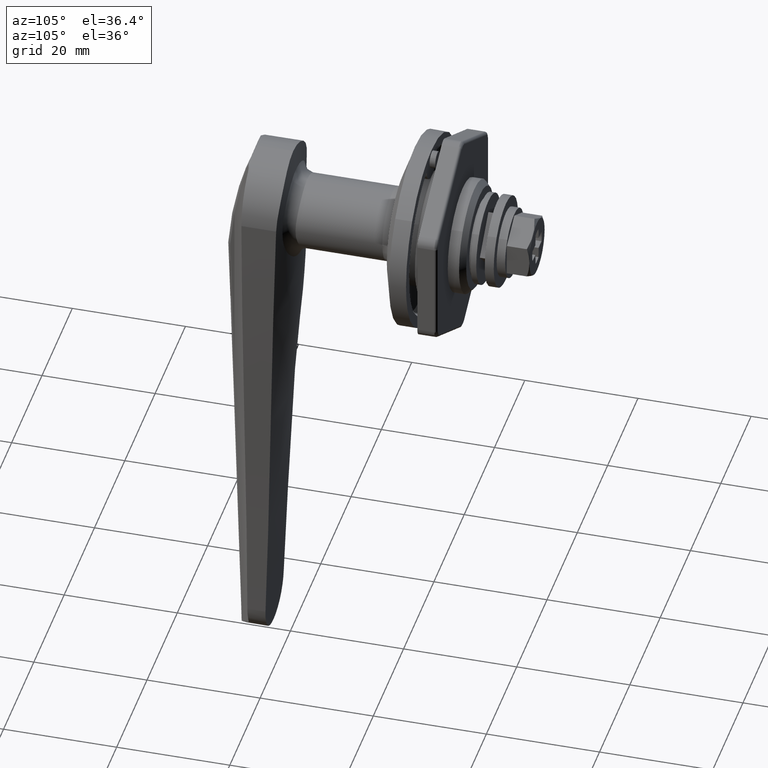
[diagram: clean part render]
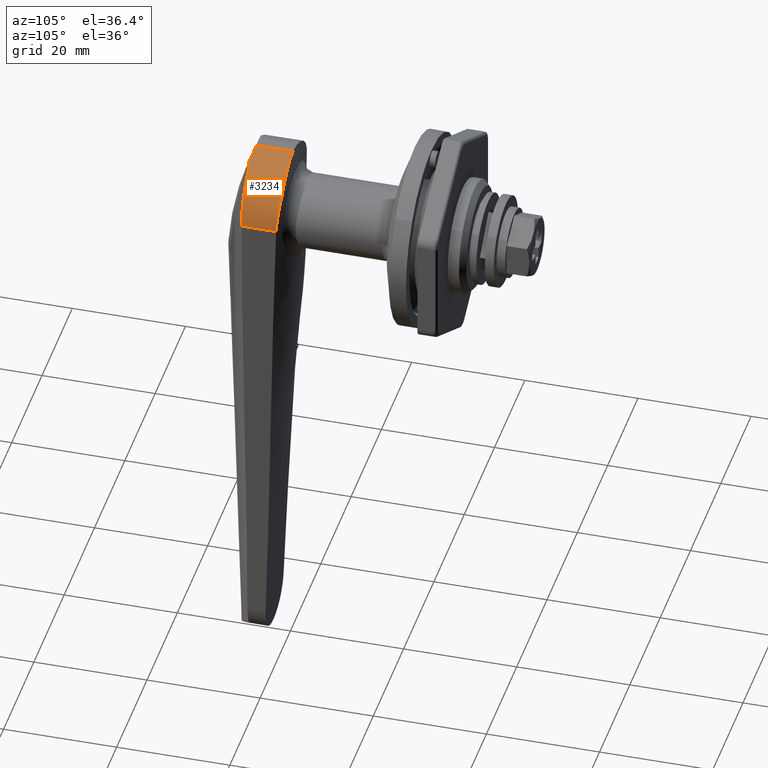
[diagram: same view with one face highlighted and labeled with its STEP entity id]
A machine part, auxiliary view. The second image highlights one B-rep face of the part: STEP entity #3234.
In plain terms, the highlighted face is a freeform B-spline surface patch.
Its self-contained STEP definition (entity closure, byte-faithful):
#2079=CARTESIAN_POINT('',(-26.000266772977749,-5.550000000000000,10.308192589194601));
#2080=VERTEX_POINT('',#2079);
#2094=CARTESIAN_POINT('',(-26.000323723438449,-5.543396750818820,10.312629633476201));
#2095=VERTEX_POINT('',#2094);
#2096=CARTESIAN_POINT('',(-26.000323723438449,-5.543396750818820,10.312629633476201));
#2097=CARTESIAN_POINT('',(-26.000266772977749,-5.550000000000000,10.308192589194601));
#2098=QUASI_UNIFORM_CURVE('',1,(#2096,#2097),.UNSPECIFIED.,.F.,.U.);
#2099=EDGE_CURVE('',#2095,#2080,#2098,.T.);
#2837=CARTESIAN_POINT('',(-26.320153862251999,-3.950608134048490,11.182432409005539));
#2838=VERTEX_POINT('',#2837);
#2839=CARTESIAN_POINT('',(-26.285692763622400,-4.207599162532504,11.066866807942841));
#2840=VERTEX_POINT('',#2839);
#2841=CARTESIAN_POINT('',(-26.320153862251999,-3.950608134048495,11.182432409005520));
#2842=CARTESIAN_POINT('',(-26.327417528585659,-3.994382438876161,11.163488936337140));
#2843=CARTESIAN_POINT('',(-26.327805782377940,-4.037902885098674,11.144281314591669));
#2844=CARTESIAN_POINT('',(-26.318964780111781,-4.102820718639954,11.115074225595979));
#2845=CARTESIAN_POINT('',(-26.314385565860839,-4.124468427241653,11.105239983137940));
#2846=CARTESIAN_POINT('',(-26.302261553241170,-4.166672712652375,11.085889700234359));
#2847=CARTESIAN_POINT('',(-26.294711444925060,-4.187345944916048,11.076321792167709));
#2848=CARTESIAN_POINT('',(-26.285692763622400,-4.207599162532504,11.066866807942841));
#2849=B_SPLINE_CURVE_WITH_KNOTS('',3,(#2841,#2842,#2843,#2844,#2845,#2846,#2847,#2848),.UNSPECIFIED.,.F.,.U.,(4,2,2,4),(0.0,0.500000000000000,0.750000000000000,1.0),.UNSPECIFIED.);
#2850=EDGE_CURVE('',#2838,#2840,#2849,.T.);
#2972=CARTESIAN_POINT('',(-26.000317116931750,-0.002850863706771,12.000000000000460));
#2973=VERTEX_POINT('',#2972);
#2974=CARTESIAN_POINT('',(-26.320153862251971,-3.950608134048498,11.182432409005539));
#2975=CARTESIAN_POINT('',(-26.294630685031059,-3.796793340180527,11.248996260906820));
#2976=CARTESIAN_POINT('',(-26.270388325368820,-3.640787764226694,11.311892871241019));
#2977=CARTESIAN_POINT('',(-26.236054947932580,-3.403403201605439,11.400607342929570));
#2978=CARTESIAN_POINT('',(-26.224948999232179,-3.323712010517924,11.429239907394511));
#2979=CARTESIAN_POINT('',(-26.203434226070840,-3.163184756785444,11.484599009413859));
#2980=CARTESIAN_POINT('',(-26.193029675685050,-3.082367886219294,11.511314377434530));
#2981=CARTESIAN_POINT('',(-26.143095658997922,-2.677887923691455,11.639297445482599));
#2982=CARTESIAN_POINT('',(-26.109554720259300,-2.351083826238686,11.724519710581220));
#2983=CARTESIAN_POINT('',(-26.055493379794701,-1.691141757246815,11.861368258602720));
#2984=CARTESIAN_POINT('',(-26.034972754714751,-1.358003604237731,11.912993343960631));
#2985=CARTESIAN_POINT('',(-26.007385422248088,-0.685309774623446,11.982306856177621));
#2986=CARTESIAN_POINT('',(-26.000317185756689,-0.345754939828721,11.999999827512250));
#2987=CARTESIAN_POINT('',(-26.000317116931750,-0.002850863706771,12.000000000000460));
#2988=B_SPLINE_CURVE_WITH_KNOTS('',3,(#2974,#2975,#2976,#2977,#2978,#2979,#2980,#2981,#2982,#2983,#2984,#2985,#2986,#2987),.UNSPECIFIED.,.F.,.U.,(4,2,2,2,2,2,4),(0.0,0.124999999999999,0.187499999999999,0.249999999999999,0.499999999999999,0.750000000000000,1.0),.UNSPECIFIED.);
#2989=EDGE_CURVE('',#2838,#2973,#2988,.T.);
#3128=CARTESIAN_POINT('',(-26.500387417035920,-9.933385186226666,1.626423289584659));
#3129=CARTESIAN_POINT('',(-19.170408241528271,-9.933385186231046,1.626423289588974));
#3130=CARTESIAN_POINT('',(-26.500387417029280,-10.419605235703571,12.762693307249647));
#3131=CARTESIAN_POINT('',(-19.170408241521617,-10.419605235694007,12.762693307253590));
#3132=CARTESIAN_POINT('',(-26.500387417027273,0.699419593406309,11.975161280981830));
#3133=CARTESIAN_POINT('',(-19.170408241519620,0.699419593417219,11.975161280978801));
#3141=(BOUNDED_SURFACE()B_SPLINE_SURFACE(1,2,((#3128,#3130,#3132),(#3129,#3131,#3133)),.UNSPECIFIED.,.F.,.F.,.U.)B_SPLINE_SURFACE_WITH_KNOTS((2,2),(3,3),(0.0,7.329979175507655),(0.0,17.817010879981360),.UNSPECIFIED.)GEOMETRIC_REPRESENTATION_ITEM()RATIONAL_B_SPLINE_SURFACE(((1.0,0.664380634701290,0.996497201948666),(1.0,0.664380634701290,0.996497201948666)))REPRESENTATION_ITEM('')SURFACE());
#3142=CARTESIAN_POINT('',(-26.000323723438420,-5.543396750818811,10.312629633476190));
#3143=CARTESIAN_POINT('',(-26.000762022892630,-5.324355296596636,10.459687041527340));
#3144=CARTESIAN_POINT('',(-26.022813812337709,-5.102649668820920,10.595891279652751));
#3145=CARTESIAN_POINT('',(-26.092459173149781,-4.767258043719296,10.784702646860280));
#3146=CARTESIAN_POINT('',(-26.121804259040271,-4.654992141624218,10.845052981638631));
#3147=CARTESIAN_POINT('',(-26.175963320314811,-4.486087824513294,10.931761197259791));
#3148=CARTESIAN_POINT('',(-26.195770503819400,-4.429568615263989,10.960089648808770));
#3149=CARTESIAN_POINT('',(-26.238403340174958,-4.317822989747087,11.014799968605461));
#3150=CARTESIAN_POINT('',(-26.261268130596040,-4.262449466172615,11.041260567716320));
#3151=CARTESIAN_POINT('',(-26.285692763622379,-4.207599162532493,11.066866807942841));
#3152=B_SPLINE_CURVE_WITH_KNOTS('',3,(#3142,#3143,#3144,#3145,#3146,#3147,#3148,#3149,#3150,#3151),.UNSPECIFIED.,.F.,.U.,(4,2,2,2,4),(0.0,0.500000000000001,0.750000000000001,0.875000000000001,1.0),.UNSPECIFIED.);
#3153=EDGE_CURVE('',#2095,#2840,#3152,.T.);
#3154=ORIENTED_EDGE('',*,*,#3153,.F.);
#3155=ORIENTED_EDGE('',*,*,#2099,.T.);
#3156=CARTESIAN_POINT('',(-26.000041112782998,-9.942125116040240,1.940300609303055));
#3157=VERTEX_POINT('',#3156);
#3158=CARTESIAN_POINT('',(-26.000041112782998,-9.942125116040240,1.940300609303055));
#3159=CARTESIAN_POINT('',(-26.000057245447302,-9.950252161234984,2.607078268082801));
#3160=CARTESIAN_POINT('',(-26.000088342128041,-9.838360034211364,3.865187677605284));
#3161=CARTESIAN_POINT('',(-26.000131664372191,-9.357464908399948,5.548755192554270));
#3162=CARTESIAN_POINT('',(-26.000172639972721,-8.633342950186490,7.083825925373501));
#3163=CARTESIAN_POINT('',(-26.000219172248389,-7.472352916056063,8.754996631105801));
#3164=CARTESIAN_POINT('',(-26.000250324642920,-6.316390010872747,9.793221357076499));
#3165=CARTESIAN_POINT('',(-26.000266772977749,-5.550000000000000,10.308192589194601));
#3166=B_SPLINE_CURVE_WITH_KNOTS('',3,(#3158,#3159,#3160,#3161,#3162,#3163,#3164,#3165),.UNSPECIFIED.,.F.,.U.,(4,1,1,1,1,4),(0.000000038048590,2.000464353448612,3.770125163586694,5.231976807671163,7.078577004634870,9.848459467935395),.UNSPECIFIED.);
#3167=EDGE_CURVE('',#3157,#2080,#3166,.T.);
#3168=ORIENTED_EDGE('',*,*,#3167,.F.);
#3169=CARTESIAN_POINT('',(-19.852089478674500,-9.942125116040250,1.940300609303185));
#3170=VERTEX_POINT('',#3169);
#3171=CARTESIAN_POINT('',(-19.852089478674500,-9.942125116040250,1.940300609303185));
#3172=CARTESIAN_POINT('',(-26.000041112782998,-9.942125116040240,1.940300609303055));
#3173=QUASI_UNIFORM_CURVE('',1,(#3171,#3172),.UNSPECIFIED.,.F.,.U.);
#3174=EDGE_CURVE('',#3170,#3157,#3173,.T.);
#3175=ORIENTED_EDGE('',*,*,#3174,.F.);
#3176=CARTESIAN_POINT('',(-19.500000000000000,-0.002845863706769,12.000000000000460));
#3177=VERTEX_POINT('',#3176);
#3178=CARTESIAN_POINT('',(-19.500000000000000,-0.002845863706769,12.000000000000460));
#3179=CARTESIAN_POINT('',(-19.500000000000000,-0.333960810856462,12.000000000000460));
#3180=CARTESIAN_POINT('',(-19.497747238442649,-0.662226170924390,11.983498974771910));
#3181=CARTESIAN_POINT('',(-19.489219536887390,-1.313267341629717,11.918671809226820));
#3182=CARTESIAN_POINT('',(-19.482946290593080,-1.636042637917376,11.870342446257290));
#3183=CARTESIAN_POINT('',(-19.467324594315379,-2.276155984317146,11.742056171684800));
#3184=CARTESIAN_POINT('',(-19.457976910435779,-2.593494295132160,11.662100704610779));
#3185=CARTESIAN_POINT('',(-19.445225859481390,-2.986707201495857,11.541926694725680));
#3186=CARTESIAN_POINT('',(-19.442623336178350,-3.065176394286597,11.516878001067630));
#3187=CARTESIAN_POINT('',(-19.437339055056711,-3.221764841152401,11.464731278576680));
#3188=CARTESIAN_POINT('',(-19.434653545409208,-3.299990911702856,11.437593309297860));
#3189=CARTESIAN_POINT('',(-19.426556590406950,-3.533053880629529,11.353466432159820));
#3190=CARTESIAN_POINT('',(-19.421100685668350,-3.686411275025699,11.293735436392140));
#3191=CARTESIAN_POINT('',(-19.404904195931032,-4.140558161331813,11.103817442709330));
#3192=CARTESIAN_POINT('',(-19.394335152802888,-4.435436898624686,10.962931721773961));
#3193=CARTESIAN_POINT('',(-19.375506468670348,-5.009737043928440,10.653084267876221));
#3194=CARTESIAN_POINT('',(-19.367248819104660,-5.289158280919880,10.484122121197730));
#3195=CARTESIAN_POINT('',(-19.357961314152089,-5.696582664703230,10.209343185944061));
#3196=CARTESIAN_POINT('',(-19.355381534292359,-5.830435942136852,10.114187757946150));
#3197=CARTESIAN_POINT('',(-19.351473118744110,-6.094168271088940,9.916623822723732));
#3198=CARTESIAN_POINT('',(-19.350144801379919,-6.224400964028424,9.813907928571634));
#3199=CARTESIAN_POINT('',(-19.348357975198962,-6.605364352370973,9.497694113853006));
#3200=CARTESIAN_POINT('',(-19.350089141143901,-6.846914510126576,9.275887339029678));
#3201=CARTESIAN_POINT('',(-19.360161963301149,-7.305907627320121,8.810969900934502));
#3202=CARTESIAN_POINT('',(-19.368505519536221,-7.523348831644979,8.567857736462086));
#3203=CARTESIAN_POINT('',(-19.392064633766921,-7.934159369712647,8.060370261762612));
#3204=CARTESIAN_POINT('',(-19.407283427839779,-8.127530422619451,7.795996600973576));
#3205=CARTESIAN_POINT('',(-19.435025564498300,-8.399036586336266,7.383036764506469));
#3206=CARTESIAN_POINT('',(-19.445104649043252,-8.486525195565127,7.242454763243224));
#3207=CARTESIAN_POINT('',(-19.466526524959608,-8.653340871216537,6.958937487242660));
#3208=CARTESIAN_POINT('',(-19.477891998327468,-8.732923076057828,6.815636190746891));
#3209=CARTESIAN_POINT('',(-19.513633041358990,-8.960412303903683,6.381168628838268));
#3210=CARTESIAN_POINT('',(-19.539669383994589,-9.097089987471042,6.085451803254096));
#3211=CARTESIAN_POINT('',(-19.594073529977390,-9.340950607092122,5.481891027561528));
#3212=CARTESIAN_POINT('',(-19.622442221658769,-9.448134520772701,5.174047562496625));
#3213=CARTESIAN_POINT('',(-19.664783911429222,-9.586455975963299,4.702879059936985));
#3214=CARTESIAN_POINT('',(-19.678858379229169,-9.628813538024581,4.544252309251664));
#3215=CARTESIAN_POINT('',(-19.706549176712990,-9.705881106084846,4.223762992613192));
#3216=CARTESIAN_POINT('',(-19.720101625542309,-9.740408659751235,4.062612445707300));
#3217=CARTESIAN_POINT('',(-19.759147940521821,-9.831693624561993,3.578319779351705));
#3218=CARTESIAN_POINT('',(-19.783100257121429,-9.876378482179588,3.253546477038984));
#3219=CARTESIAN_POINT('',(-19.823781095260308,-9.933586100713484,2.599998061102212));
#3220=CARTESIAN_POINT('',(-19.840507196274729,-9.946110435616216,2.271222963582659));
#3221=CARTESIAN_POINT('',(-19.852089478674500,-9.942125116040250,1.940300609303185));
#3222=B_SPLINE_CURVE_WITH_KNOTS('',3,(#3178,#3179,#3180,#3181,#3182,#3183,#3184,#3185,#3186,#3187,#3188,#3189,#3190,#3191,#3192,#3193,#3194,#3195,#3196,#3197,#3198,#3199,#3200,#3201,#3202,#3203,#3204,#3205,#3206,#3207,#3208,#3209,#3210,#3211,#3212,#3213,#3214,#3215,#3216,#3217,#3218,#3219,#3220,#3221),.UNSPECIFIED.,.F.,.U.,(4,2,2,2,2,2,2,2,2,2,2,2,2,2,2,2,2,2,2,2,2,4),(0.0,0.062500000000000,0.125000000000000,0.187499999999999,0.203124999999999,0.218749999999999,0.249999999999999,0.312499999999999,0.374999999999999,0.406249999999999,0.437499999999999,0.499999999999999,0.562499999999999,0.624999999999999,0.656249999999999,0.687499999999999,0.749999999999999,0.812499999999999,0.843749999999999,0.874999999999999,0.937500000000000,1.0),.UNSPECIFIED.);
#3223=EDGE_CURVE('',#3177,#3170,#3222,.T.);
#3224=ORIENTED_EDGE('',*,*,#3223,.F.);
#3225=CARTESIAN_POINT('',(-26.000317116931750,-0.002850863706771,12.000000000000460));
#3226=CARTESIAN_POINT('',(-19.500000000000000,-0.002845863706769,12.000000000000460));
#3227=QUASI_UNIFORM_CURVE('',1,(#3225,#3226),.UNSPECIFIED.,.F.,.U.);
#3228=EDGE_CURVE('',#2973,#3177,#3227,.T.);
#3229=ORIENTED_EDGE('',*,*,#3228,.F.);
#3230=ORIENTED_EDGE('',*,*,#2989,.F.);
#3231=ORIENTED_EDGE('',*,*,#2850,.T.);
#3232=EDGE_LOOP('',(#3154,#3155,#3168,#3175,#3224,#3229,#3230,#3231));
#3233=FACE_OUTER_BOUND('',#3232,.T.);
#3234=ADVANCED_FACE('',(#3233),#3141,.T.);